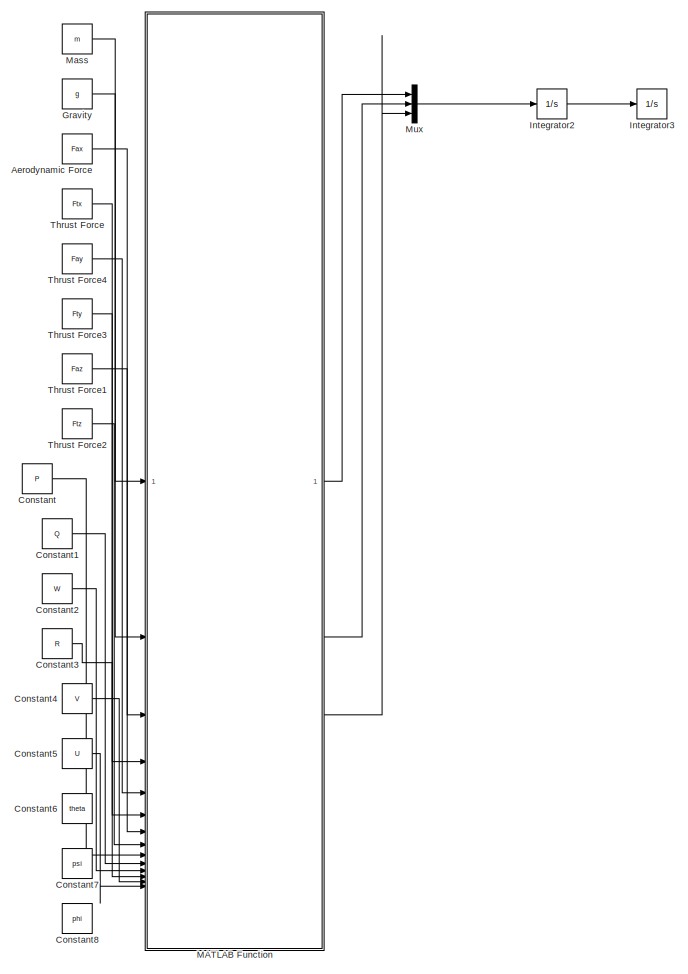
[diagram: root canvas - part 1/3, middle left region]
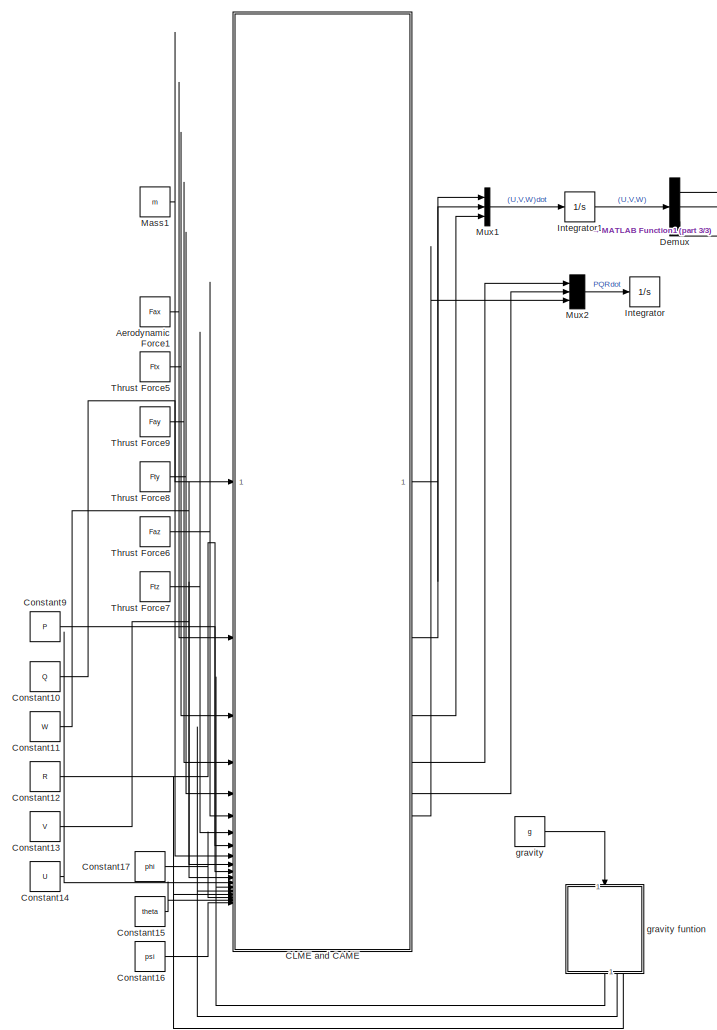
[diagram: root canvas - part 2/3, right side, full height]
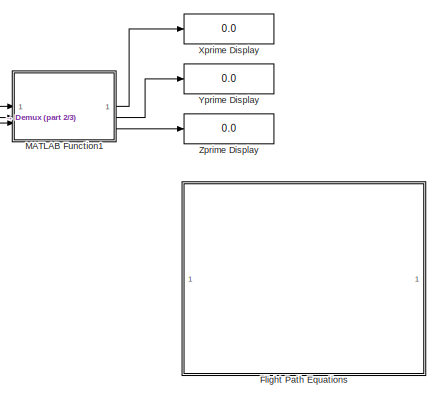
[diagram: root canvas - part 3/3, middle right region]
MODEL slx_bb7cb38914b2
KIND model
CONFIG AbsTol = auto
CONFIG EnableMultiTasking = off
CONFIG FixedStep = auto
CONFIG MaxStep = auto
CONFIG MinStep = auto
CONFIG RelTol = 1e-3
CONFIG SampleTimeConstraint = Unconstrained
CONFIG SolverName = VariableStepAuto
CONFIG StartTime = 0.0
CONFIG StopTime = 10.0
BLOCK [Constant] Aerodynamic Force
  Value = Fax
BLOCK [Constant] Aerodynamic Force1
  Value = Fax
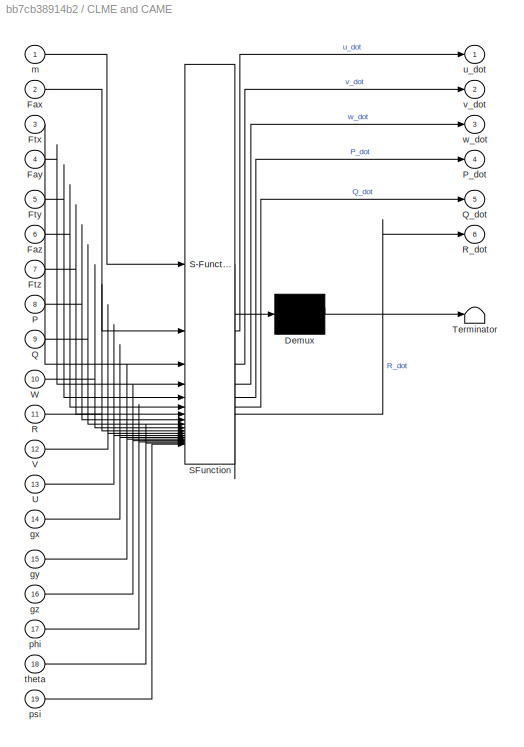
BLOCK [SubSystem] CLME and CAME
  ErrorFcn = Stateflow.Translate.translate
  PermitHierarchicalResolution = ExplicitOnly
  SFBlockType = MATLAB Function
  TreatAsAtomicUnit = on
BLOCK [Demux] CLME and CAME/ Demux 
  Outputs = 1
BLOCK [S-Function] CLME and CAME/ SFunction 
  EnableBusSupport = on
  FunctionName = sf_sfun
  PortCounts = [19 7]
  SFcnIsStateOwnerBlock = off
  SFunctionDeploymentMode = off
  Tag = Stateflow S-Function 1
BLOCK [Terminator] CLME and CAME/ Terminator 
BLOCK [Inport] CLME and CAME/Fax
  Port = 2
BLOCK [Inport] CLME and CAME/Fay
  Port = 4
BLOCK [Inport] CLME and CAME/Faz
  Port = 6
BLOCK [Inport] CLME and CAME/Ftx
  Port = 3
BLOCK [Inport] CLME and CAME/Fty
  Port = 5
BLOCK [Inport] CLME and CAME/Ftz
  Port = 7
BLOCK [Inport] CLME and CAME/P
  Port = 8
BLOCK [Outport] CLME and CAME/P_dot
  Port = 4
BLOCK [Inport] CLME and CAME/Q
  Port = 9
BLOCK [Outport] CLME and CAME/Q_dot
  Port = 5
BLOCK [Inport] CLME and CAME/R
  Port = 11
BLOCK [Outport] CLME and CAME/R_dot
  Port = 6
BLOCK [Inport] CLME and CAME/U
  Port = 13
BLOCK [Inport] CLME and CAME/V
  Port = 12
BLOCK [Inport] CLME and CAME/W
  Port = 10
BLOCK [Inport] CLME and CAME/gx
  Port = 14
BLOCK [Inport] CLME and CAME/gy
  Port = 15
BLOCK [Inport] CLME and CAME/gz
  Port = 16
BLOCK [Inport] CLME and CAME/m
BLOCK [Inport] CLME and CAME/phi
  Port = 17
BLOCK [Inport] CLME and CAME/psi
  Port = 19
BLOCK [Inport] CLME and CAME/theta
  Port = 18
BLOCK [Outport] CLME and CAME/u_dot
BLOCK [Outport] CLME and CAME/v_dot
  Port = 2
BLOCK [Outport] CLME and CAME/w_dot
  Port = 3
BLOCK [Constant] Constant
  Value = P
BLOCK [Constant] Constant1
  Value = Q
BLOCK [Constant] Constant10
  Value = Q
BLOCK [Constant] Constant11
  Value = W
BLOCK [Constant] Constant12
  Value = R
BLOCK [Constant] Constant13
  Value = V
BLOCK [Constant] Constant14
  Value = U
BLOCK [Constant] Constant15
  Value = theta
BLOCK [Constant] Constant16
  Value = psi
BLOCK [Constant] Constant17
  Value = phi
BLOCK [Constant] Constant2
  Value = W
BLOCK [Constant] Constant3
  Value = R
BLOCK [Constant] Constant4
  Value = V
BLOCK [Constant] Constant5
  Value = U
BLOCK [Constant] Constant6
  Value = theta
BLOCK [Constant] Constant7
  Value = psi
BLOCK [Constant] Constant8
  Value = phi
BLOCK [Constant] Constant9
  Value = P
BLOCK [Demux] Demux
  Outputs = 3
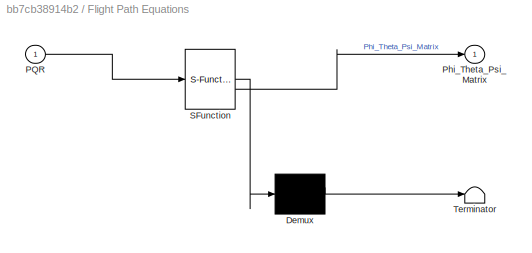
BLOCK [SubSystem] Flight Path Equations
  ErrorFcn = Stateflow.Translate.translate
  PermitHierarchicalResolution = ExplicitOnly
  SFBlockType = MATLAB Function
  TreatAsAtomicUnit = on
BLOCK [Demux] Flight Path Equations/ Demux 
  Outputs = 1
BLOCK [S-Function] Flight Path Equations/ SFunction 
  EnableBusSupport = on
  FunctionName = sf_sfun
  PortCounts = [1 2]
  SFcnIsStateOwnerBlock = off
  SFunctionDeploymentMode = off
  Tag = Stateflow S-Function 3
BLOCK [Terminator] Flight Path Equations/ Terminator 
BLOCK [Inport] Flight Path Equations/PQR
BLOCK [Outport] Flight Path Equations/Phi_Theta_Psi_Matrix
BLOCK [Constant] Gravity
  Value = g
BLOCK [Integrator] Integrator
BLOCK [Integrator] Integrator1
  InitialCondition = velocity
BLOCK [Integrator] Integrator2
  InitialCondition = velocity
BLOCK [Integrator] Integrator3
  InitialCondition = t
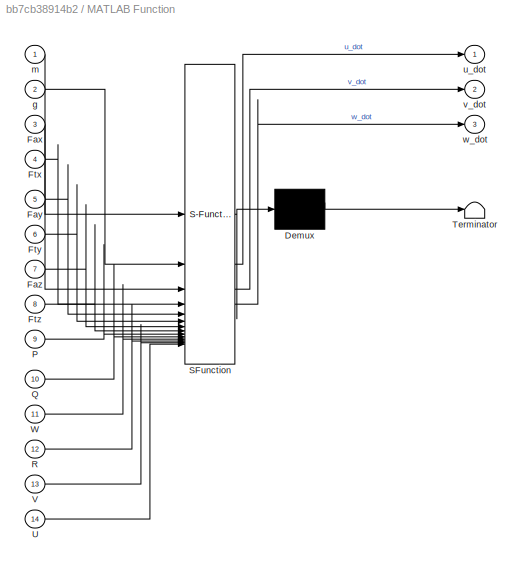
BLOCK [SubSystem] MATLAB Function
  ErrorFcn = Stateflow.Translate.translate
  PermitHierarchicalResolution = ExplicitOnly
  SFBlockType = MATLAB Function
  TreatAsAtomicUnit = on
BLOCK [Demux] MATLAB Function/ Demux 
  Outputs = 1
BLOCK [S-Function] MATLAB Function/ SFunction 
  EnableBusSupport = on
  FunctionName = sf_sfun
  PortCounts = [14 4]
  SFcnIsStateOwnerBlock = off
  SFunctionDeploymentMode = off
  Tag = Stateflow S-Function 2
BLOCK [Terminator] MATLAB Function/ Terminator 
BLOCK [Inport] MATLAB Function/Fax
  Port = 3
BLOCK [Inport] MATLAB Function/Fay
  Port = 5
BLOCK [Inport] MATLAB Function/Faz
  Port = 7
BLOCK [Inport] MATLAB Function/Ftx
  Port = 4
BLOCK [Inport] MATLAB Function/Fty
  Port = 6
BLOCK [Inport] MATLAB Function/Ftz
  Port = 8
BLOCK [Inport] MATLAB Function/P
  Port = 9
BLOCK [Inport] MATLAB Function/Q
  Port = 10
BLOCK [Inport] MATLAB Function/R
  Port = 12
BLOCK [Inport] MATLAB Function/U
  Port = 14
BLOCK [Inport] MATLAB Function/V
  Port = 13
BLOCK [Inport] MATLAB Function/W
  Port = 11
BLOCK [Inport] MATLAB Function/g
  Port = 2
BLOCK [Inport] MATLAB Function/m
BLOCK [Outport] MATLAB Function/u_dot
BLOCK [Outport] MATLAB Function/v_dot
  Port = 2
BLOCK [Outport] MATLAB Function/w_dot
  Port = 3
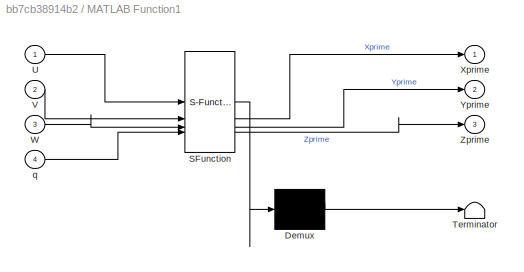
BLOCK [SubSystem] MATLAB Function1
  ErrorFcn = Stateflow.Translate.translate
  PermitHierarchicalResolution = ExplicitOnly
  SFBlockType = MATLAB Function
  TreatAsAtomicUnit = on
BLOCK [Demux] MATLAB Function1/ Demux 
  Outputs = 1
BLOCK [S-Function] MATLAB Function1/ SFunction 
  EnableBusSupport = on
  FunctionName = sf_sfun
  PortCounts = [4 4]
  SFcnIsStateOwnerBlock = off
  SFunctionDeploymentMode = off
  Tag = Stateflow S-Function 4
BLOCK [Terminator] MATLAB Function1/ Terminator 
BLOCK [Inport] MATLAB Function1/U
BLOCK [Inport] MATLAB Function1/V
  Port = 2
BLOCK [Inport] MATLAB Function1/W
  Port = 3
BLOCK [Outport] MATLAB Function1/Xprime
BLOCK [Outport] MATLAB Function1/Yprime
  Port = 2
BLOCK [Outport] MATLAB Function1/Zprime
  Port = 3
BLOCK [Inport] MATLAB Function1/q
  Port = 4
BLOCK [Constant] Mass
  Value = m
BLOCK [Constant] Mass1
  Value = m
BLOCK [Mux] Mux
  DisplayOption = bar
  Inputs = 3
BLOCK [Mux] Mux1
  DisplayOption = bar
  Inputs = 3
BLOCK [Mux] Mux2
  DisplayOption = bar
  Inputs = 3
BLOCK [Constant] Thrust Force
  Value = Ftx
BLOCK [Constant] Thrust Force1
  Value = Faz
BLOCK [Constant] Thrust Force2
  Value = Ftz
BLOCK [Constant] Thrust Force3
  Value = Fty
BLOCK [Constant] Thrust Force4
  Value = Fay
BLOCK [Constant] Thrust Force5
  Value = Ftx
BLOCK [Constant] Thrust Force6
  Value = Faz
BLOCK [Constant] Thrust Force7
  Value = Ftz
BLOCK [Constant] Thrust Force8
  Value = Fty
BLOCK [Constant] Thrust Force9
  Value = Fay
BLOCK [Display] Xprime Display
  Decimation = 1
BLOCK [Display] Yprime Display
  Decimation = 1
BLOCK [Display] Zprime Display
  Decimation = 1
BLOCK [Constant] gravity
  Value = g
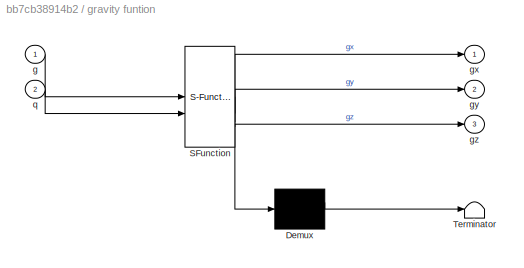
BLOCK [SubSystem] gravity funtion
  ErrorFcn = Stateflow.Translate.translate
  NameLocation = left
  PermitHierarchicalResolution = ExplicitOnly
  SFBlockType = MATLAB Function
  TreatAsAtomicUnit = on
BLOCK [Demux] gravity funtion/ Demux 
  Outputs = 1
BLOCK [S-Function] gravity funtion/ SFunction 
  EnableBusSupport = on
  FunctionName = sf_sfun
  PortCounts = [2 4]
  SFcnIsStateOwnerBlock = off
  SFunctionDeploymentMode = off
  Tag = Stateflow S-Function 5
BLOCK [Terminator] gravity funtion/ Terminator 
BLOCK [Inport] gravity funtion/g
BLOCK [Outport] gravity funtion/gx
BLOCK [Outport] gravity funtion/gy
  Port = 2
BLOCK [Outport] gravity funtion/gz
  Port = 3
BLOCK [Inport] gravity funtion/q
  Port = 2
LINE Aerodynamic Force1:1 -> CLME and CAME:2
LINE Aerodynamic Force:1 -> MATLAB Function:3
LINE CLME and CAME:1 -> Mux1:1
LINE CLME and CAME:2 -> Mux1:2
LINE CLME and CAME:3 -> Mux1:3
LINE CLME and CAME:4 -> Mux2:1
LINE CLME and CAME:5 -> Mux2:2
LINE CLME and CAME:6 -> Mux2:3
LINE Constant10:1 -> CLME and CAME:9
LINE Constant11:1 -> CLME and CAME:10
LINE Constant12:1 -> CLME and CAME:11
LINE Constant13:1 -> CLME and CAME:12
LINE Constant14:1 -> CLME and CAME:13
LINE Constant15:1 -> CLME and CAME:18
LINE Constant16:1 -> CLME and CAME:19
LINE Constant17:1 -> CLME and CAME:17
LINE Constant1:1 -> MATLAB Function:10
LINE Constant2:1 -> MATLAB Function:11
LINE Constant3:1 -> MATLAB Function:12
LINE Constant4:1 -> MATLAB Function:13
LINE Constant5:1 -> MATLAB Function:14
LINE Constant9:1 -> CLME and CAME:8
LINE Constant:1 -> MATLAB Function:9
LINE Demux:1 -> MATLAB Function1:1
LINE Demux:2 -> MATLAB Function1:2
LINE Demux:3 -> MATLAB Function1:3
LINE Gravity:1 -> MATLAB Function:2
LINE Integrator1:1 -> Demux:1
LINE Integrator2:1 -> Integrator3:1
LINE MATLAB Function1:1 -> Xprime Display:1
LINE MATLAB Function1:2 -> Yprime Display:1
LINE MATLAB Function1:3 -> Zprime Display:1
LINE MATLAB Function:1 -> Mux:1
LINE MATLAB Function:2 -> Mux:2
LINE MATLAB Function:3 -> Mux:3
LINE Mass1:1 -> CLME and CAME:1
LINE Mass:1 -> MATLAB Function:1
LINE Mux1:1 -> Integrator1:1
LINE Mux2:1 -> Integrator:1
LINE Mux:1 -> Integrator2:1
LINE Thrust Force1:1 -> MATLAB Function:7
LINE Thrust Force2:1 -> MATLAB Function:8
LINE Thrust Force3:1 -> MATLAB Function:6
LINE Thrust Force4:1 -> MATLAB Function:5
LINE Thrust Force5:1 -> CLME and CAME:3
LINE Thrust Force6:1 -> CLME and CAME:6
LINE Thrust Force7:1 -> CLME and CAME:7
LINE Thrust Force8:1 -> CLME and CAME:5
LINE Thrust Force9:1 -> CLME and CAME:4
LINE Thrust Force:1 -> MATLAB Function:4
LINE gravity funtion:1 -> CLME and CAME:14
LINE gravity funtion:2 -> CLME and CAME:15
LINE gravity funtion:3 -> CLME and CAME:16
LINE gravity:1 -> gravity funtion:1
CHART gravity funtion states=1 transitions=1
  STATE_LABEL 'eML_blk_kernel()'
  STATE_LABEL 'SCRIPT:\nfunction [gx, gy, gz] = fcn(g,q)\n\ngx = -gsind(q(1,:));\ngy = g*((cosd(q(2,:))).*(sind(q(2,:))));\ngz = g*((cosd(3,:)).*(cosd(3,:)));\n\n\n%function [gx, gy, gz] = fcn(g,phi, theta, psi)\n\n%gx = -gsind(theta);\n%gy = g*((cosd(theta)).*(sind(phi)));\n%gz = g*((cosd(theta)).*(cosd(phi)));\n\n\n'
CHART CLME and CAME states=1 transitions=1
  STATE_LABEL 'eML_blk_kernel()'
  STATE_LABEL 'SCRIPT:\nfunction [u_dot, v_dot, w_dot, P_dot, Q_dot, R_dot] = fcn(m, Fax, Ftx, Fay, Fty, Faz, Ftz, P, Q, W, R, V, U, gx, gy, gz, phi, theta, psi)\n\n%Mass = 2300; %kg\n%g = 9.81; %m/s\n%theta = 0;\n%Fax = 0;\n%Ftx = 0;\n\n\nu_dot = (1/m) * (((m*gx)+ (Fax + Ftx))-(Q*W)+(R*V));\nv_dot = (1/m) * (((m*gy)+ (Fay + Fty))-(U*R)+(P*W));\nw_dot = (1/m) * (((m*gz)+ (Faz + Ftz))-(P*V)+(Q*U));\n\n\n\n%CAME\n%Ixx=[];\n%Ixz=[];...<+372ch>'
CHART MATLAB Function states=1 transitions=1
  STATE_LABEL 'eML_blk_kernel()'
  STATE_LABEL 'SCRIPT:\nfunction [u_dot, v_dot, w_dot] = fcn(m, g, Fax, Ftx, Fay, Fty, Faz, Ftz, P, Q, W, R, V, U)\n\n%Mass = 2300; %kg\n%g = 9.81; %m/s\n%theta = 0;\n%Fax = 0;\n%Ftx = 0;\n\n\nu_dot = (1/m) * (((m*g)+ (Fax + Ftx))-(Q*W)+(R*V));\nv_dot = (1/m) * (((m*g)+ (Fay + Fty))-(U*R)+(P*W));\nw_dot = (1/m) * (((m*g)+ (Faz + Ftz))-(P*V)+(Q*U));\n\n\n\n%CAME\n%Ixx=[];\n%Ixz=[];\n%Izz=[];\n%Iyy=[];\n%La=0;\n%Lt=0;\n%Ma=0;\n%Mt=0;\n%Na...<+153ch>'
CHART Flight Path Equations states=1 transitions=1
  STATE_LABEL 'eML_blk_kernel()'
  STATE_LABEL 'SCRIPT:\nfunction Phi_Theta_Psi_Matrix = fcn(PQR)\n\nAngleMatrix = [1 (sind(phi)).*(tand(theta)) ((cosd(phi)).*tand(theta));\n               0 cosd(phi) -sind(phi); \n               0 ((sind(phi)).*(secd(theta))) ((cosd(phi)).*(secd(theta)))]; \n\n%check if actually a cross product\n\nPhi_Theta_Psi_Matrix = cross(AngleMatrix, PQR);\n\n'
CHART MATLAB Function1 states=1 transitions=1
  STATE_LABEL 'eML_blk_kernel()'
  STATE_LABEL 'SCRIPT:\nfunction [Xprime, Yprime, Zprime] = fcn(U, V, W, q)\n%function [Xprime, Yprime, Zprime] = fcn(U, V, W, phi, theta, psi)\n%need to take angles out and replace with quaternions\n\n%RotationMatrix = [cosd(psi).*cosd(theta) (-sind(psi).*cosd(phi))+(cosd(psi).*(sind(theta)).*sind(phi)) ((sind(psi).*sind(phi))+(cosd(psi).*(sind(theta)).*cosd(phi)));\n                 % (sind(psi) .* cosd(theta)) (cos...<+461ch>'
CHART  states=0 transitions=0
CHART  states=0 transitions=0
CHART  states=0 transitions=0
CHART  states=0 transitions=0
CHART  states=0 transitions=0
